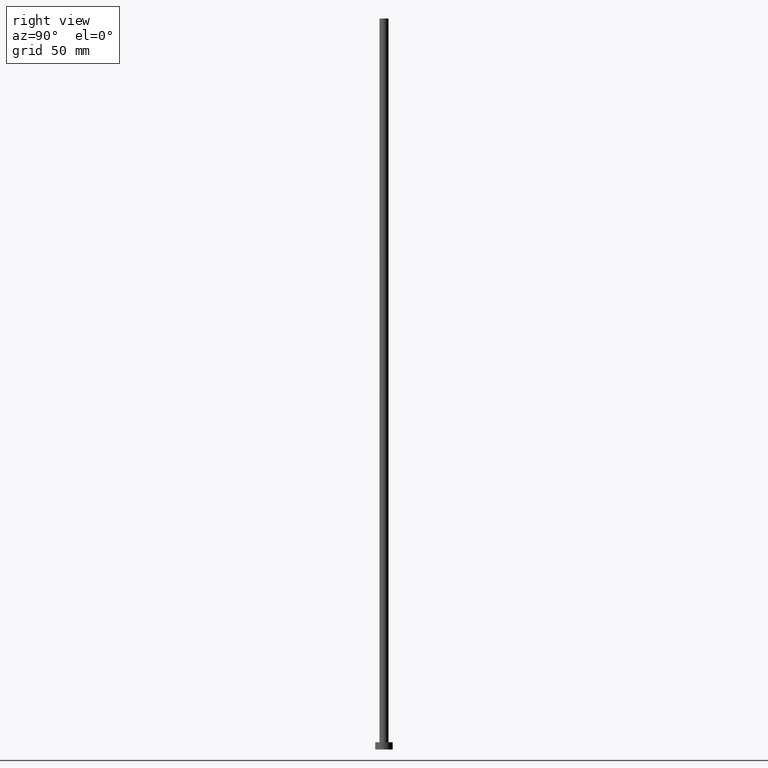
[diagram: clean part render]
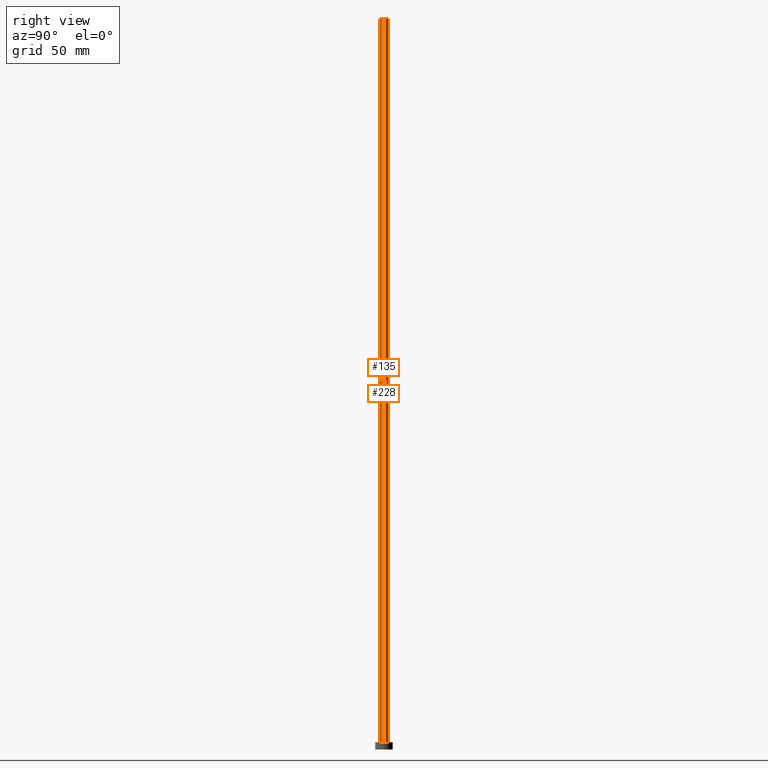
[diagram: same view with one multi-face feature highlighted, each face labeled with its STEP entity id]
A machine part, right view. The highlighted faces form ONE feature: a constant-radius fillet chain: 2 tangent blend faces with common blend radius 3.1 mm. The faces share edges in the B-rep.
Their STEP definitions:
[1] entity #228 (Cylinder):
#5 = ORIENTED_EDGE ( 'NONE', *, *, #56, .F. ) ;
#11 = CARTESIAN_POINT ( 'NONE',  ( 0.000000000000000000, 0.000000000000000000, 500.0000000000000000 ) ) ;
#26 = CYLINDRICAL_SURFACE ( 'NONE', #203, 3.100000000000000089 ) ;
#31 = VERTEX_POINT ( 'NONE', #244 ) ;
#42 = CIRCLE ( 'NONE', #162, 3.100000000000000089 ) ;
#56 = EDGE_CURVE ( 'NONE', #130, #31, #42, .T. ) ;
#58 = DIRECTION ( 'NONE',  ( -0.000000000000000000, -0.000000000000000000, -1.000000000000000000 ) ) ;
#66 = CIRCLE ( 'NONE', #103, 3.100000000000000089 ) ;
#67 = DIRECTION ( 'NONE',  ( 1.000000000000000000, 0.000000000000000000, 0.000000000000000000 ) ) ;
#69 = DIRECTION ( 'NONE',  ( -0.000000000000000000, -0.000000000000000000, -1.000000000000000000 ) ) ;
#81 = CARTESIAN_POINT ( 'NONE',  ( 3.100000000000000089, 3.796405077356794918E-16, 500.0000000000000000 ) ) ;
#83 = EDGE_CURVE ( 'NONE', #31, #129, #224, .T. ) ;
#85 = ORIENTED_EDGE ( 'NONE', *, *, #83, .F. ) ;
#88 = CARTESIAN_POINT ( 'NONE',  ( 3.100000000000000089, 3.796405077356794918E-16, 500.0000000000000000 ) ) ;
#95 = VECTOR ( 'NONE', #69, 1000.000000000000000 ) ;
#96 = EDGE_LOOP ( 'NONE', ( #5, #131, #112, #85 ) ) ;
#97 = DIRECTION ( 'NONE',  ( -0.000000000000000000, -0.000000000000000000, -1.000000000000000000 ) ) ;
#99 = CARTESIAN_POINT ( 'NONE',  ( 3.100000000000000089, 3.796405077356794918E-16, 5.000000000000000000 ) ) ;
#103 = AXIS2_PLACEMENT_3D ( 'NONE', #251, #194, #67 ) ;
#112 = ORIENTED_EDGE ( 'NONE', *, *, #172, .T. ) ;
#122 = LINE ( 'NONE', #88, #95 ) ;
#129 = VERTEX_POINT ( 'NONE', #218 ) ;
#130 = VERTEX_POINT ( 'NONE', #81 ) ;
#131 = ORIENTED_EDGE ( 'NONE', *, *, #237, .T. ) ;
#142 = VECTOR ( 'NONE', #58, 1000.000000000000000 ) ;
#154 = FACE_OUTER_BOUND ( 'NONE', #96, .T. ) ;
#156 = DIRECTION ( 'NONE',  ( 0.000000000000000000, 0.000000000000000000, 1.000000000000000000 ) ) ;
#162 = AXIS2_PLACEMENT_3D ( 'NONE', #202, #156, #220 ) ;
#165 = CARTESIAN_POINT ( 'NONE',  ( -3.100000000000000089, 0.000000000000000000, 500.0000000000000000 ) ) ;
#166 = DIRECTION ( 'NONE',  ( -1.000000000000000000, 0.000000000000000000, 0.000000000000000000 ) ) ;
#172 = EDGE_CURVE ( 'NONE', #254, #129, #66, .T. ) ;
#194 = DIRECTION ( 'NONE',  ( 0.000000000000000000, 0.000000000000000000, 1.000000000000000000 ) ) ;
#202 = CARTESIAN_POINT ( 'NONE',  ( 0.000000000000000000, 0.000000000000000000, 500.0000000000000000 ) ) ;
#203 = AXIS2_PLACEMENT_3D ( 'NONE', #11, #97, #166 ) ;
#218 = CARTESIAN_POINT ( 'NONE',  ( -3.100000000000000089, 0.000000000000000000, 5.000000000000000000 ) ) ;
#220 = DIRECTION ( 'NONE',  ( 1.000000000000000000, 0.000000000000000000, 0.000000000000000000 ) ) ;
#224 = LINE ( 'NONE', #165, #142 ) ;
#228 = ADVANCED_FACE ( 'NONE', ( #154 ), #26, .T. ) ;
#237 = EDGE_CURVE ( 'NONE', #130, #254, #122, .T. ) ;
#244 = CARTESIAN_POINT ( 'NONE',  ( -3.100000000000000089, 0.000000000000000000, 500.0000000000000000 ) ) ;
#251 = CARTESIAN_POINT ( 'NONE',  ( 0.000000000000000000, 0.000000000000000000, 5.000000000000000000 ) ) ;
#254 = VERTEX_POINT ( 'NONE', #99 ) ;
[2] entity #135 (Cylinder):
#4 = DIRECTION ( 'NONE',  ( 0.000000000000000000, 0.000000000000000000, 1.000000000000000000 ) ) ;
#31 = VERTEX_POINT ( 'NONE', #244 ) ;
#48 = DIRECTION ( 'NONE',  ( 1.000000000000000000, 0.000000000000000000, 0.000000000000000000 ) ) ;
#58 = DIRECTION ( 'NONE',  ( -0.000000000000000000, -0.000000000000000000, -1.000000000000000000 ) ) ;
#68 = EDGE_CURVE ( 'NONE', #129, #254, #195, .T. ) ;
#69 = DIRECTION ( 'NONE',  ( -0.000000000000000000, -0.000000000000000000, -1.000000000000000000 ) ) ;
#73 = CARTESIAN_POINT ( 'NONE',  ( 0.000000000000000000, 0.000000000000000000, 5.000000000000000000 ) ) ;
#76 = ORIENTED_EDGE ( 'NONE', *, *, #83, .T. ) ;
#80 = DIRECTION ( 'NONE',  ( 1.000000000000000000, 0.000000000000000000, 0.000000000000000000 ) ) ;
#81 = CARTESIAN_POINT ( 'NONE',  ( 3.100000000000000089, 3.796405077356794918E-16, 500.0000000000000000 ) ) ;
#82 = AXIS2_PLACEMENT_3D ( 'NONE', #173, #119, #181 ) ;
#83 = EDGE_CURVE ( 'NONE', #31, #129, #224, .T. ) ;
#86 = AXIS2_PLACEMENT_3D ( 'NONE', #73, #138, #80 ) ;
#88 = CARTESIAN_POINT ( 'NONE',  ( 3.100000000000000089, 3.796405077356794918E-16, 500.0000000000000000 ) ) ;
#94 = CIRCLE ( 'NONE', #206, 3.100000000000000089 ) ;
#95 = VECTOR ( 'NONE', #69, 1000.000000000000000 ) ;
#99 = CARTESIAN_POINT ( 'NONE',  ( 3.100000000000000089, 3.796405077356794918E-16, 5.000000000000000000 ) ) ;
#119 = DIRECTION ( 'NONE',  ( -0.000000000000000000, -0.000000000000000000, -1.000000000000000000 ) ) ;
#122 = LINE ( 'NONE', #88, #95 ) ;
#129 = VERTEX_POINT ( 'NONE', #218 ) ;
#130 = VERTEX_POINT ( 'NONE', #81 ) ;
#135 = ADVANCED_FACE ( 'NONE', ( #158 ), #217, .T. ) ;
#137 = EDGE_CURVE ( 'NONE', #31, #130, #94, .T. ) ;
#138 = DIRECTION ( 'NONE',  ( 0.000000000000000000, 0.000000000000000000, 1.000000000000000000 ) ) ;
#142 = VECTOR ( 'NONE', #58, 1000.000000000000000 ) ;
#145 = ORIENTED_EDGE ( 'NONE', *, *, #68, .T. ) ;
#158 = FACE_OUTER_BOUND ( 'NONE', #163, .T. ) ;
#163 = EDGE_LOOP ( 'NONE', ( #207, #241, #76, #145 ) ) ;
#165 = CARTESIAN_POINT ( 'NONE',  ( -3.100000000000000089, 0.000000000000000000, 500.0000000000000000 ) ) ;
#173 = CARTESIAN_POINT ( 'NONE',  ( 0.000000000000000000, 0.000000000000000000, 500.0000000000000000 ) ) ;
#180 = CARTESIAN_POINT ( 'NONE',  ( 0.000000000000000000, 0.000000000000000000, 500.0000000000000000 ) ) ;
#181 = DIRECTION ( 'NONE',  ( -1.000000000000000000, 0.000000000000000000, 0.000000000000000000 ) ) ;
#195 = CIRCLE ( 'NONE', #86, 3.100000000000000089 ) ;
#206 = AXIS2_PLACEMENT_3D ( 'NONE', #180, #4, #48 ) ;
#207 = ORIENTED_EDGE ( 'NONE', *, *, #237, .F. ) ;
#217 = CYLINDRICAL_SURFACE ( 'NONE', #82, 3.100000000000000089 ) ;
#218 = CARTESIAN_POINT ( 'NONE',  ( -3.100000000000000089, 0.000000000000000000, 5.000000000000000000 ) ) ;
#224 = LINE ( 'NONE', #165, #142 ) ;
#237 = EDGE_CURVE ( 'NONE', #130, #254, #122, .T. ) ;
#241 = ORIENTED_EDGE ( 'NONE', *, *, #137, .F. ) ;
#244 = CARTESIAN_POINT ( 'NONE',  ( -3.100000000000000089, 0.000000000000000000, 500.0000000000000000 ) ) ;
#254 = VERTEX_POINT ( 'NONE', #99 ) ;